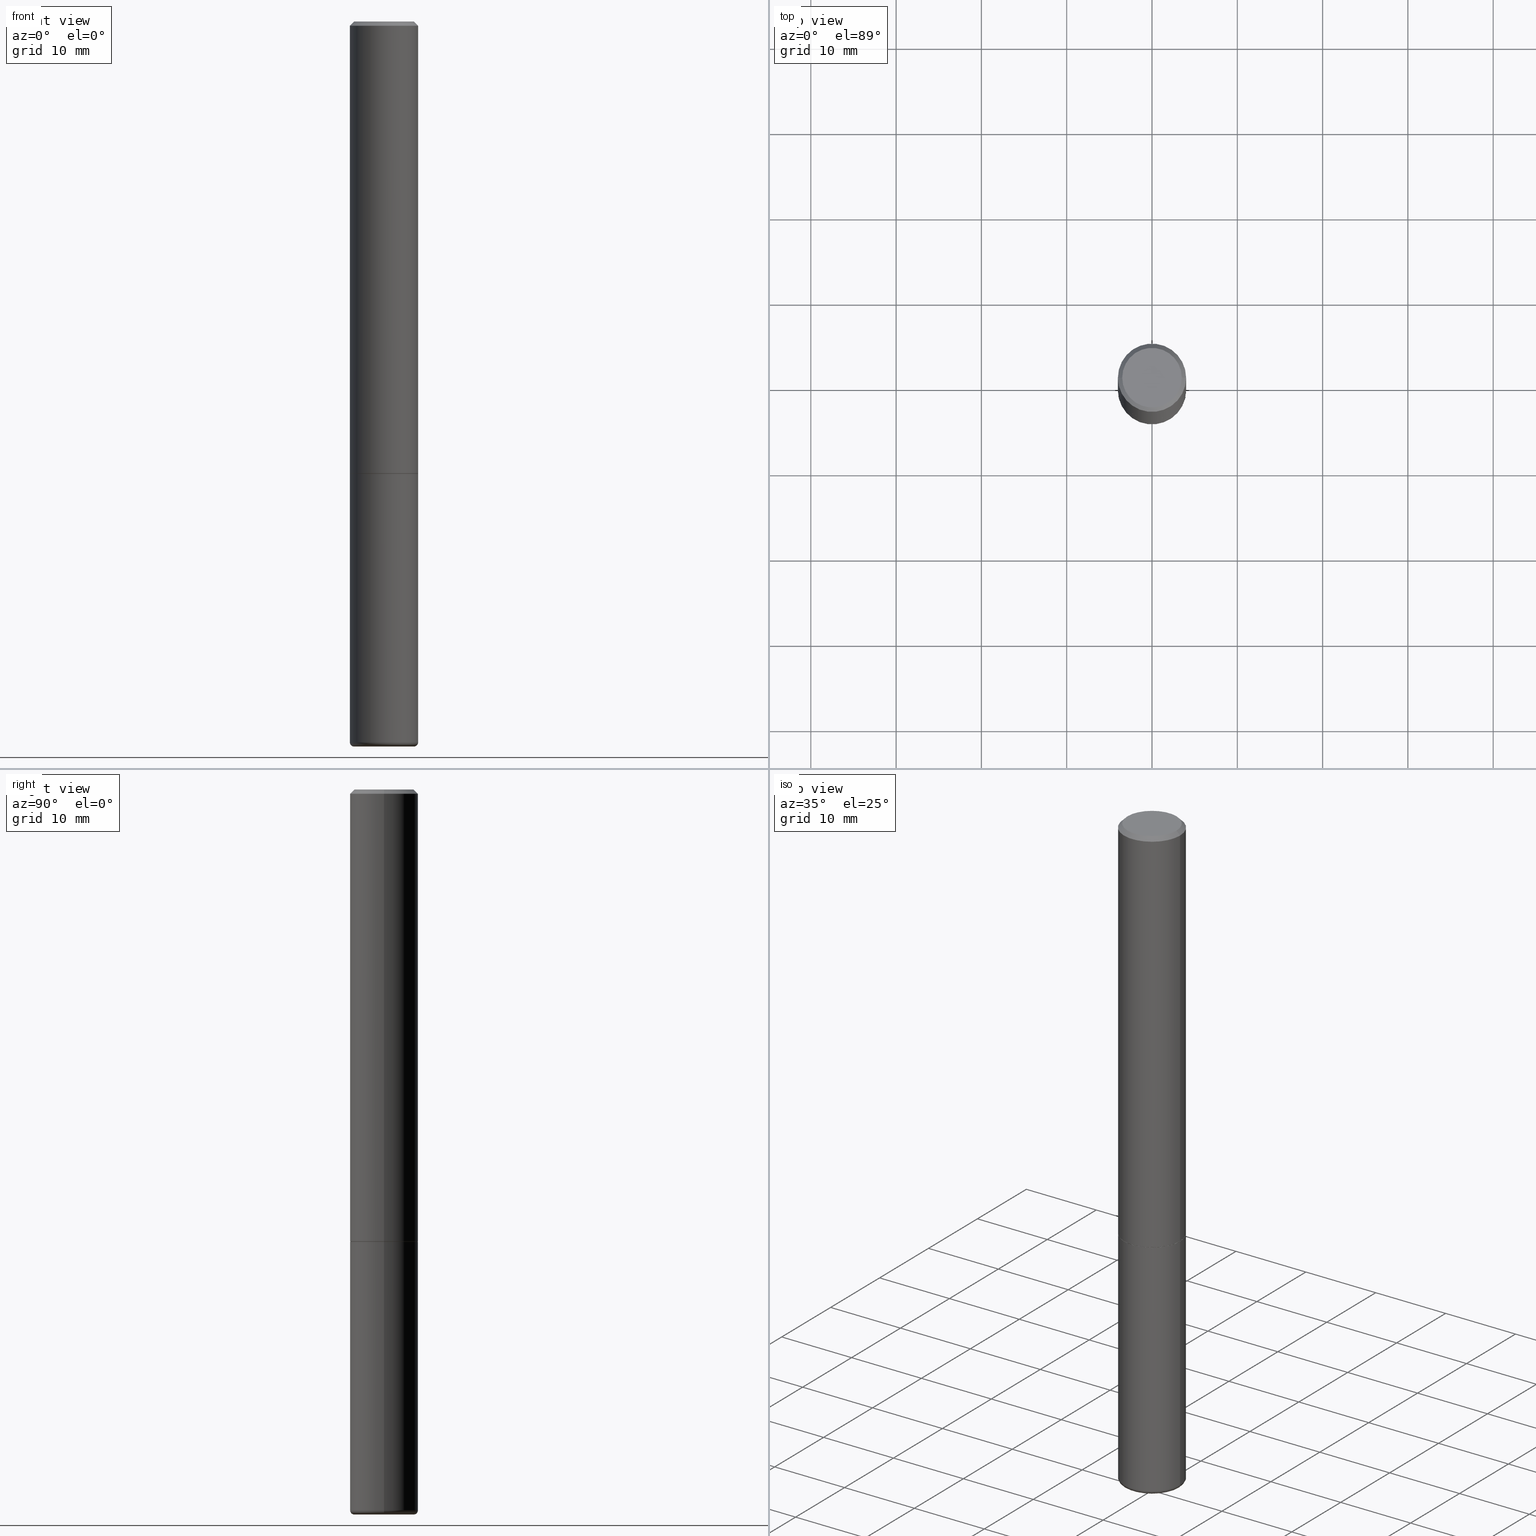
[diagram: canonical four-view strip — front | top / right | iso, engineering-drawing reading convention]
A machine part, canonical four-view strip (front | top / right | iso — engineering-drawing reading convention). The complete STEP part file that produces these views, byte-faithful:
ISO-10303-21;
HEADER;
FILE_DESCRIPTION (( 'STEP AP203' ),
    '1' );
FILE_NAME ('74385.STEP',
    '2024-03-06T15:10:16',
    ( '' ),
    ( '' ),
    'SwSTEP 2.0',
    'SolidWorks 2023',
    '' );
FILE_SCHEMA (( 'CONFIG_CONTROL_DESIGN' ));
ENDSEC;

DATA;
#1 = APPLICATION_CONTEXT ( 'configuration controlled 3d designs of mechanical parts and assemblies' ) ;
#2 = CARTESIAN_POINT ( 'NONE',  ( 4.890937612370281041E-31, -6.982962677686302702E-17, -0.02000000000000003511 ) ) ;
#3 = ORIENTED_EDGE ( 'NONE', *, *, #412, .F. ) ;
#4 = PERSON_AND_ORGANIZATION ( #186, #296 ) ;
#5 = CIRCLE ( 'NONE', #33, 0.1575000000000001954 ) ;
#6 = LOCAL_TIME ( 10, 10, 16.00000000000000000, #405 ) ;
#7 = ORIENTED_EDGE ( 'NONE', *, *, #338, .F. ) ;
#8 = CARTESIAN_POINT ( 'NONE',  ( -0.1378000000000000058, -1.063633222818595933E-14, -3.326799999999999979 ) ) ;
#9 = CIRCLE ( 'NONE', #125, 0.1575000000000000011 ) ;
#10 = APPLICATION_PROTOCOL_DEFINITION ( 'international standard', 'config_control_design', 1994, #1 ) ;
#11 = LINE ( 'NONE', #106, #315 ) ;
#12 = COORDINATED_UNIVERSAL_TIME_OFFSET ( 5, 0, .BEHIND. ) ;
#13 = EDGE_LOOP ( 'NONE', ( #7, #86, #345, #275 ) ) ;
#14 = CARTESIAN_POINT ( 'NONE',  ( 0.000000000000000000, 0.000000000000000000, 0.000000000000000000 ) ) ;
#15 = CARTESIAN_POINT ( 'NONE',  ( 5.102959757866523939E-29, -7.285674109763990928E-15, -2.086699999999999999 ) ) ;
#16 = UNCERTAINTY_MEASURE_WITH_UNIT (LENGTH_MEASURE( 1.000000000000000082E-05 ), #415, 'distance_accuracy_value', 'NONE');
#17 = PERSON_AND_ORGANIZATION ( #186, #296 ) ;
#18 = CYLINDRICAL_SURFACE ( 'NONE', #297, 0.1575000000000000289 ) ;
#19 = CARTESIAN_POINT ( 'NONE',  ( 8.135585624416713045E-29, -1.161546011806337842E-14, -3.326799999999999979 ) ) ;
#20 = AXIS2_PLACEMENT_3D ( 'NONE', #47, #159, #51 ) ;
#21 = ORIENTED_EDGE ( 'NONE', *, *, #88, .T. ) ;
#22 = ORIENTED_EDGE ( 'NONE', *, *, #220, .F. ) ;
#23 = CIRCLE ( 'NONE', #366, 0.1565000000000000002 ) ;
#24 = CC_DESIGN_PERSON_AND_ORGANIZATION_ASSIGNMENT ( #199, #102, ( #335 ) ) ;
#25 = EDGE_LOOP ( 'NONE', ( #142, #166, #208, #407 ) ) ;
#26 = CONICAL_SURFACE ( 'NONE', #281, 0.1575000000000000289, 0.7853981633974481680 ) ;
#27 = AXIS2_PLACEMENT_3D ( 'NONE', #39, #352, #31 ) ;
#28 = ORIENTED_EDGE ( 'NONE', *, *, #112, .T. ) ;
#29 = ADVANCED_FACE ( 'NONE', ( #205 ), #262, .F. ) ;
#30 = AXIS2_PLACEMENT_3D ( 'NONE', #253, #151, #87 ) ;
#31 = DIRECTION ( 'NONE',  ( 1.000000000000000000, -6.982962677686266711E-15, 4.883557194083113462E-29 ) ) ;
#32 = ORIENTED_EDGE ( 'NONE', *, *, #94, .T. ) ;
#33 = AXIS2_PLACEMENT_3D ( 'NONE', #149, #187, #390 ) ;
#34 = DIRECTION ( 'NONE',  ( 0.7071067811865957564, -2.468850131082761932E-15, 0.7071067811864992780 ) ) ;
#35 = EDGE_LOOP ( 'NONE', ( #98, #239, #113, #37 ) ) ;
#36 = APPROVAL ( #152, 'UNSPECIFIED' ) ;
#37 = ORIENTED_EDGE ( 'NONE', *, *, #363, .F. ) ;
#38 = PERSON_AND_ORGANIZATION ( #186, #296 ) ;
#39 = CARTESIAN_POINT ( 'NONE',  ( 8.135585624416713045E-29, -1.161546011806337842E-14, -3.326799999999999979 ) ) ;
#40 = ORIENTED_EDGE ( 'NONE', *, *, #372, .F. ) ;
#41 = ADVANCED_FACE ( 'NONE', ( #369 ), #133, .T. ) ;
#42 = ORIENTED_EDGE ( 'NONE', *, *, #220, .T. ) ;
#43 = CARTESIAN_POINT ( 'NONE',  ( 5.102959757866523939E-29, -7.285674109763990928E-15, -2.086699999999999999 ) ) ;
#44 = CC_DESIGN_PERSON_AND_ORGANIZATION_ASSIGNMENT ( #75, #361, ( #285 ) ) ;
#45 = COORDINATED_UNIVERSAL_TIME_OFFSET ( 5, 0, .BEHIND. ) ;
#46 = CIRCLE ( 'NONE', #195, 0.01969999999999989468 ) ;
#47 = CARTESIAN_POINT ( 'NONE',  ( 8.183761359898559783E-29, -1.168424230043858645E-14, -3.346499999999999808 ) ) ;
#48 = AXIS2_PLACEMENT_3D ( 'NONE', #301, #330, #400 ) ;
#49 = CARTESIAN_POINT ( 'NONE',  ( 5.102959757866523939E-29, -7.285674109763990928E-15, -2.086699999999999999 ) ) ;
#50 = CALENDAR_DATE ( 2024, 6, 3 ) ;
#51 = DIRECTION ( 'NONE',  ( 1.000000000000000000, -6.982962677686265922E-15, 0.000000000000000000 ) ) ;
#52 = VERTEX_POINT ( 'NONE', #141 ) ;
#53 = LINE ( 'NONE', #167, #376 ) ;
#54 = VERTEX_POINT ( 'NONE', #265 ) ;
#55 = DIRECTION ( 'NONE',  ( -1.000000000000000000, 6.982962677686265922E-15, -4.876176775795935793E-29 ) ) ;
#56 = DIRECTION ( 'NONE',  ( -2.445468806185136597E-29, 3.491481338843145583E-15, 1.000000000000000000 ) ) ;
#57 = EDGE_CURVE ( 'NONE', #188, #313, #118, .T. ) ;
#58 = ORIENTED_EDGE ( 'NONE', *, *, #175, .T. ) ;
#59 = LOCAL_TIME ( 10, 10, 16.00000000000000000, #12 ) ;
#60 = AXIS2_PLACEMENT_3D ( 'NONE', #8, #305, #358 ) ;
#61 = ORIENTED_EDGE ( 'NONE', *, *, #178, .F. ) ;
#62 = LOCAL_TIME ( 10, 10, 16.00000000000000000, #194 ) ;
#63 = DIRECTION ( 'NONE',  ( -2.438088387897960049E-29, 3.491481338843145188E-15, 1.000000000000000000 ) ) ;
#64 = AXIS2_PLACEMENT_3D ( 'NONE', #19, #139, #381 ) ;
#65 = DIRECTION ( 'NONE',  ( -2.445468806185136597E-29, 3.491481338843145583E-15, 1.000000000000000000 ) ) ;
#66 = ADVANCED_FACE ( 'NONE', ( #170 ), #404, .T. ) ;
#67 = FACE_OUTER_BOUND ( 'NONE', #377, .T. ) ;
#68 = DIRECTION ( 'NONE',  ( -0.7071067811865473507, 2.468850131082255483E-15, -0.7071067811865475727 ) ) ;
#69 = SECURITY_CLASSIFICATION_LEVEL ( 'unclassified' ) ;
#70 = EDGE_CURVE ( 'NONE', #289, #188, #46, .T. ) ;
#71 = EDGE_CURVE ( 'NONE', #171, #246, #23, .T. ) ;
#72 = CARTESIAN_POINT ( 'NONE',  ( 0.1565000000000000002, -8.378507768821891605E-15, -2.086699999999999999 ) ) ;
#73 = CARTESIAN_POINT ( 'NONE',  ( -0.1575000000000001954, -2.556901318778844062E-15, -2.085699999999999665 ) ) ;
#74 = DIRECTION ( 'NONE',  ( 2.445468806185136597E-29, -3.491481338843145583E-15, -1.000000000000000000 ) ) ;
#75 = PERSON_AND_ORGANIZATION ( #186, #296 ) ;
#76 = DIRECTION ( 'NONE',  ( 1.000000000000000000, -6.982962677686268288E-15, 0.000000000000000000 ) ) ;
#77 = DIRECTION ( 'NONE',  ( -2.445468806185136597E-29, 3.491481338843145583E-15, 1.000000000000000000 ) ) ;
#78 = VECTOR ( 'NONE', #34, 39.37007874015748143 ) ;
#79 = DIRECTION ( 'NONE',  ( 1.000000000000000000, 0.000000000000000000, 0.000000000000000000 ) ) ;
#80 = CARTESIAN_POINT ( 'NONE',  ( 5.102959757866523939E-29, -7.285674109763990928E-15, -2.086699999999999999 ) ) ;
#81 = ORIENTED_EDGE ( 'NONE', *, *, #372, .T. ) ;
#82 = VECTOR ( 'NONE', #116, 39.37007874015748143 ) ;
#83 = ORIENTED_EDGE ( 'NONE', *, *, #398, .T. ) ;
#84 = ADVANCED_FACE ( 'NONE', ( #334 ), #18, .T. ) ;
#85 = EDGE_LOOP ( 'NONE', ( #198, #382 ) ) ;
#86 = ORIENTED_EDGE ( 'NONE', *, *, #412, .T. ) ;
#87 = DIRECTION ( 'NONE',  ( 1.000000000000000000, -6.982962677686267499E-15, 0.000000000000000000 ) ) ;
#88 = EDGE_CURVE ( 'NONE', #173, #244, #145, .T. ) ;
#89 = FACE_OUTER_BOUND ( 'NONE', #25, .T. ) ;
#90 = ADVANCED_FACE ( 'NONE', ( #270 ), #158, .T. ) ;
#91 = DIRECTION ( 'NONE',  ( -2.445468806185136597E-29, 3.491481338843145583E-15, 1.000000000000000000 ) ) ;
#92 = TOROIDAL_SURFACE ( 'NONE', #27, 0.1378000000000000058, 0.01969999999999991203 ) ;
#93 = DIRECTION ( 'NONE',  ( 1.000000000000000000, -6.982962677686265922E-15, 0.000000000000000000 ) ) ;
#94 = EDGE_CURVE ( 'NONE', #313, #188, #337, .T. ) ;
#95 = AXIS2_PLACEMENT_3D ( 'NONE', #15, #340, #55 ) ;
#96 = CIRCLE ( 'NONE', #214, 0.1575000000000000289 ) ;
#97 = DIRECTION ( 'NONE',  ( -2.445468806185136597E-29, 3.491481338843145583E-15, 1.000000000000000000 ) ) ;
#98 = ORIENTED_EDGE ( 'NONE', *, *, #130, .T. ) ;
#99 = DIRECTION ( 'NONE',  ( -2.445468806185136597E-29, 3.491481338843145583E-15, 1.000000000000000000 ) ) ;
#100 = PERSON_AND_ORGANIZATION_ROLE ( 'classification_officer' ) ;
#101 = CARTESIAN_POINT ( 'NONE',  ( 4.890937612370281041E-31, -6.982962677686302702E-17, -0.02000000000000003511 ) ) ;
#102 = PERSON_AND_ORGANIZATION_ROLE ( 'design_owner' ) ;
#103 = DIRECTION ( 'NONE',  ( -2.445468806185136597E-29, 3.491481338843145583E-15, 1.000000000000000000 ) ) ;
#104 = PERSON_AND_ORGANIZATION ( #186, #296 ) ;
#105 = DIRECTION ( 'NONE',  ( 1.000000000000000000, -6.982962677686273810E-15, 0.000000000000000000 ) ) ;
#106 = CARTESIAN_POINT ( 'NONE',  ( 0.1575000000000000289, -1.099816621735587283E-15, 7.679978421878599434E-30 ) ) ;
#107 = CC_DESIGN_DATE_AND_TIME_ASSIGNMENT ( #225, #322, ( #385 ) ) ;
#108 = CARTESIAN_POINT ( 'NONE',  ( 0.1378000000000000058, -1.257771237504854589E-14, -3.326799999999999979 ) ) ;
#109 = PERSON_AND_ORGANIZATION ( #186, #296 ) ;
#110 = DIRECTION ( 'NONE',  ( 1.000000000000000000, -6.982962677686266711E-15, 0.000000000000000000 ) ) ;
#111 = DIRECTION ( 'NONE',  ( -1.000000000000000000, 6.982962677686265922E-15, -4.876176775795935793E-29 ) ) ;
#112 = EDGE_CURVE ( 'NONE', #271, #172, #219, .T. ) ;
#113 = ORIENTED_EDGE ( 'NONE', *, *, #348, .F. ) ;
#114 = ORIENTED_EDGE ( 'NONE', *, *, #112, .F. ) ;
#115 = AXIS2_PLACEMENT_3D ( 'NONE', #268, #406, #371 ) ;
#116 = DIRECTION ( 'NONE',  ( -2.445468806185136877E-29, 3.491481338843145188E-15, 1.000000000000000000 ) ) ;
#117 = DIRECTION ( 'NONE',  ( -2.445468806185136877E-29, 3.491481338843145188E-15, 1.000000000000000000 ) ) ;
#118 = CIRCLE ( 'NONE', #124, 0.1575000000000000289 ) ;
#119 = CYLINDRICAL_SURFACE ( 'NONE', #370, 0.1575000000000000289 ) ;
#120 = FACE_OUTER_BOUND ( 'NONE', #273, .T. ) ;
#121 = DIRECTION ( 'NONE',  ( 1.000000000000000000, -6.982962677686265922E-15, 4.876176775795935793E-29 ) ) ;
#122 = DIRECTION ( 'NONE',  ( -1.000000000000000000, 6.982962677686267499E-15, 0.000000000000000000 ) ) ;
#123 = ORIENTED_EDGE ( 'NONE', *, *, #94, .F. ) ;
#124 = AXIS2_PLACEMENT_3D ( 'NONE', #401, #240, #105 ) ;
#125 = AXIS2_PLACEMENT_3D ( 'NONE', #43, #155, #76 ) ;
#126 = FACE_OUTER_BOUND ( 'NONE', #391, .T. ) ;
#127 = PRODUCT_DEFINITION_SHAPE ( 'NONE', 'NONE',  #285 ) ;
#128 = DATE_AND_TIME ( #304, #6 ) ;
#129 = DIRECTION ( 'NONE',  ( -2.445468806185136597E-29, 3.491481338843145583E-15, 1.000000000000000000 ) ) ;
#130 = EDGE_CURVE ( 'NONE', #246, #171, #202, .T. ) ;
#131 = ADVANCED_FACE ( 'NONE', ( #290 ), #346, .F. ) ;
#132 = APPROVAL_STATUS ( 'not_yet_approved' ) ;
#133 = PLANE ( 'NONE',  #255 ) ;
#134 = DATE_TIME_ROLE ( 'creation_date' ) ;
#135 = DIRECTION ( 'NONE',  ( 2.438088387897960049E-29, -3.491481338843145188E-15, -1.000000000000000000 ) ) ;
#136 = MANIFOLD_SOLID_BREP ( 'Body-Move/Copy2[1]', #213 ) ;
#137 = MANIFOLD_SOLID_BREP ( 'Body-Move/Copy2[2]', #157 ) ;
#138 = ADVANCED_FACE ( 'NONE', ( #251 ), #222, .F. ) ;
#139 = DIRECTION ( 'NONE',  ( -2.445468806185136597E-29, 3.491481338843145583E-15, 1.000000000000000000 ) ) ;
#140 = VERTEX_POINT ( 'NONE', #216 ) ;
#141 = CARTESIAN_POINT ( 'NONE',  ( 0.1575000000000000289, -1.150358061425879472E-15, -0.02000000000000003511 ) ) ;
#142 = ORIENTED_EDGE ( 'NONE', *, *, #209, .F. ) ;
#143 = EDGE_CURVE ( 'NONE', #207, #52, #316, .T. ) ;
#144 = ORIENTED_EDGE ( 'NONE', *, *, #143, .T. ) ;
#145 = CIRCLE ( 'NONE', #181, 0.1575000000000000011 ) ;
#146 =( NAMED_UNIT ( * ) PLANE_ANGLE_UNIT ( ) SI_UNIT ( $, .RADIAN. ) );
#147 = EDGE_CURVE ( 'NONE', #52, #172, #411, .T. ) ;
#148 = DIRECTION ( 'NONE',  ( -2.445468806185136597E-29, 3.491481338843145583E-15, 1.000000000000000000 ) ) ;
#149 = CARTESIAN_POINT ( 'NONE',  ( 5.100514289060338336E-29, -7.282182628425147921E-15, -2.085699999999999665 ) ) ;
#150 = CARTESIAN_POINT ( 'NONE',  ( 5.100514289060338336E-29, -7.282182628425147921E-15, -2.085699999999999665 ) ) ;
#151 = DIRECTION ( 'NONE',  ( -2.445468806185136597E-29, 3.491481338843145583E-15, 1.000000000000000000 ) ) ;
#152 = APPROVAL_STATUS ( 'not_yet_approved' ) ;
#153 = FACE_OUTER_BOUND ( 'NONE', #413, .T. ) ;
#154 = APPROVAL_PERSON_ORGANIZATION ( #17, #374, #267 ) ;
#155 = DIRECTION ( 'NONE',  ( -2.445468806185136597E-29, 3.491481338843145583E-15, 1.000000000000000000 ) ) ;
#156 = CIRCLE ( 'NONE', #60, 0.01969999999999989468 ) ;
#157 = CLOSED_SHELL ( 'NONE', ( #90, #66, #241, #308, #169, #332, #131, #138 ) ) ;
#158 = CONICAL_SURFACE ( 'NONE', #115, 0.1565000000000000002, 0.7853981633975165577 ) ;
#159 = DIRECTION ( 'NONE',  ( -2.445468806185136597E-29, 3.491481338843145583E-15, 1.000000000000000000 ) ) ;
#160 = DIRECTION ( 'NONE',  ( 1.000000000000000000, -6.982962677686268288E-15, 0.000000000000000000 ) ) ;
#161 = EDGE_CURVE ( 'NONE', #172, #52, #96, .T. ) ;
#162 = AXIS2_PLACEMENT_3D ( 'NONE', #2, #250, #122 ) ;
#163 = TOROIDAL_SURFACE ( 'NONE', #341, 0.1378000000000000058, 0.01969999999999991203 ) ;
#164 = CARTESIAN_POINT ( 'NONE',  ( -0.1575000000000000289, 1.029986994958724182E-15, -0.02000000000000003511 ) ) ;
#165 = CALENDAR_DATE ( 2024, 6, 3 ) ;
#166 = ORIENTED_EDGE ( 'NONE', *, *, #71, .T. ) ;
#167 = CARTESIAN_POINT ( 'NONE',  ( -0.1565000000000000002, -6.173674728299434333E-15, -2.086699999999999999 ) ) ;
#168 = CARTESIAN_POINT ( 'NONE',  ( 0.000000000000000000, 0.000000000000000000, 0.000000000000000000 ) ) ;
#169 = ADVANCED_FACE ( 'NONE', ( #230 ), #396, .T. ) ;
#170 = FACE_OUTER_BOUND ( 'NONE', #201, .T. ) ;
#171 = VERTEX_POINT ( 'NONE', #368 ) ;
#172 = VERTEX_POINT ( 'NONE', #164 ) ;
#173 = VERTEX_POINT ( 'NONE', #325 ) ;
#174 = ORIENTED_EDGE ( 'NONE', *, *, #226, .F. ) ;
#175 = EDGE_CURVE ( 'NONE', #188, #173, #11, .T. ) ;
#176 = EDGE_LOOP ( 'NONE', ( #185, #177 ) ) ;
#177 = ORIENTED_EDGE ( 'NONE', *, *, #71, .F. ) ;
#178 = EDGE_CURVE ( 'NONE', #244, #173, #9, .T. ) ;
#179 = APPROVAL_PERSON_ORGANIZATION ( #38, #36, #291 ) ;
#180 = DIRECTION ( 'NONE',  ( -1.000000000000000000, 6.982962677686265922E-15, -4.876176775795935793E-29 ) ) ;
#181 = AXIS2_PLACEMENT_3D ( 'NONE', #49, #365, #160 ) ;
#182 = DIRECTION ( 'NONE',  ( 2.438088387897960049E-29, -3.491481338843145188E-15, -1.000000000000000000 ) ) ;
#183 = ADVANCED_BREP_SHAPE_REPRESENTATION ( '74385', ( #136, #137, #294 ), #347 ) ;
#184 = DIRECTION ( 'NONE',  ( -2.445468806185136597E-29, 3.491481338843145583E-15, 1.000000000000000000 ) ) ;
#185 = ORIENTED_EDGE ( 'NONE', *, *, #130, .F. ) ;
#186 = PERSON ( 'UNSPECIFIED', 'UNSPECIFIED', 'UNSPECIFIED', ('UNSPECIFIED'), ('UNSPECIFIED'), ('UNSPECIFIED') ) ;
#187 = DIRECTION ( 'NONE',  ( -2.445468806185136597E-29, 3.491481338843145583E-15, 1.000000000000000000 ) ) ;
#188 = VERTEX_POINT ( 'NONE', #333 ) ;
#189 = APPROVAL_ROLE ( '' ) ;
#190 = CARTESIAN_POINT ( 'NONE',  ( -0.1575000000000000289, 1.029986994958724182E-15, -0.02000000000000003511 ) ) ;
#191 = APPROVAL_DATE_TIME ( #389, #36 ) ;
#192 = LOCAL_TIME ( 10, 10, 16.00000000000000000, #45 ) ;
#193 = CARTESIAN_POINT ( 'NONE',  ( 8.135585624416713045E-29, -1.161546011806337842E-14, -3.326799999999999979 ) ) ;
#194 = COORDINATED_UNIVERSAL_TIME_OFFSET ( 5, 0, .BEHIND. ) ;
#195 = AXIS2_PLACEMENT_3D ( 'NONE', #108, #234, #110 ) ;
#196 = CARTESIAN_POINT ( 'NONE',  ( -4.906101647375532782E-45, 7.004612900788102525E-31, 2.006200870347193393E-16 ) ) ;
#197 = PERSON_AND_ORGANIZATION_ROLE ( 'creator' ) ;
#198 = ORIENTED_EDGE ( 'NONE', *, *, #226, .T. ) ;
#199 = PERSON_AND_ORGANIZATION ( #186, #296 ) ;
#200 = DIRECTION ( 'NONE',  ( 1.000000000000000000, -6.982962677686267499E-15, 0.000000000000000000 ) ) ;
#201 = EDGE_LOOP ( 'NONE', ( #408, #28, #320, #203 ) ) ;
#202 = CIRCLE ( 'NONE', #30, 0.1565000000000000002 ) ;
#203 = ORIENTED_EDGE ( 'NONE', *, *, #143, .F. ) ;
#204 = ORIENTED_EDGE ( 'NONE', *, *, #161, .T. ) ;
#205 = FACE_OUTER_BOUND ( 'NONE', #242, .T. ) ;
#206 = CC_DESIGN_PERSON_AND_ORGANIZATION_ASSIGNMENT ( #4, #254, ( #237 ) ) ;
#207 = VERTEX_POINT ( 'NONE', #224 ) ;
#208 = ORIENTED_EDGE ( 'NONE', *, *, #363, .T. ) ;
#209 = EDGE_CURVE ( 'NONE', #171, #271, #53, .T. ) ;
#210 =( NAMED_UNIT ( * ) SI_UNIT ( $, .STERADIAN. ) SOLID_ANGLE_UNIT ( ) );
#211 = CC_DESIGN_SECURITY_CLASSIFICATION ( #385, ( #237 ) ) ;
#212 = CARTESIAN_POINT ( 'NONE',  ( 5.102959757866523939E-29, -7.285674109763990928E-15, -2.086699999999999999 ) ) ;
#213 = CLOSED_SHELL ( 'NONE', ( #318, #339, #29, #84, #256, #41 ) ) ;
#214 = AXIS2_PLACEMENT_3D ( 'NONE', #362, #99, #259 ) ;
#215 = CARTESIAN_POINT ( 'NONE',  ( 0.1565000000000000002, -8.378507768821891605E-15, -2.086699999999999999 ) ) ;
#216 = CARTESIAN_POINT ( 'NONE',  ( -0.1374999999999997891, 9.950721815702925329E-16, 2.006200870347125108E-16 ) ) ;
#217 = CIRCLE ( 'NONE', #269, 0.1378000000000000058 ) ;
#218 = CARTESIAN_POINT ( 'NONE',  ( -0.1575000000000000289, 1.119104808822157998E-15, -7.747322767151478386E-30 ) ) ;
#219 = LINE ( 'NONE', #353, #395 ) ;
#220 = EDGE_CURVE ( 'NONE', #342, #313, #156, .T. ) ;
#221 = LINE ( 'NONE', #218, #373 ) ;
#222 = PLANE ( 'NONE',  #349 ) ;
#223 = LINE ( 'NONE', #190, #418 ) ;
#224 = CARTESIAN_POINT ( 'NONE',  ( 0.1575000000000001954, -8.381999250160736190E-15, -2.085699999999999665 ) ) ;
#225 = DATE_AND_TIME ( #165, #59 ) ;
#226 = EDGE_CURVE ( 'NONE', #140, #54, #243, .T. ) ;
#227 = PRODUCT_RELATED_PRODUCT_CATEGORY ( 'detail', '', ( #335 ) ) ;
#228 = DIRECTION ( 'NONE',  ( -1.000000000000000000, 6.982962677686267499E-15, 0.000000000000000000 ) ) ;
#229 = APPROVAL_DATE_TIME ( #128, #374 ) ;
#230 = FACE_OUTER_BOUND ( 'NONE', #336, .T. ) ;
#231 = EDGE_LOOP ( 'NONE', ( #414, #40 ) ) ;
#232 = CARTESIAN_POINT ( 'NONE',  ( 0.000000000000000000, 0.000000000000000000, 0.000000000000000000 ) ) ;
#233 = DIRECTION ( 'NONE',  ( -2.445468806185136877E-29, 3.491481338843145188E-15, 1.000000000000000000 ) ) ;
#234 = DIRECTION ( 'NONE',  ( -6.982962677686266711E-15, -1.000000000000000000, 3.491481338843145583E-15 ) ) ;
#235 = APPROVAL_STATUS ( 'not_yet_approved' ) ;
#236 = APPLICATION_CONTEXT ( 'configuration controlled 3d designs of mechanical parts and assemblies' ) ;
#237 = PRODUCT_DEFINITION_FORMATION_WITH_SPECIFIED_SOURCE ( 'ANY', '', #335, .NOT_KNOWN. ) ;
#238 = CARTESIAN_POINT ( 'NONE',  ( 0.000000000000000000, 0.000000000000000000, 0.000000000000000000 ) ) ;
#239 = ORIENTED_EDGE ( 'NONE', *, *, #209, .T. ) ;
#240 = DIRECTION ( 'NONE',  ( -2.445468806185136597E-29, 3.491481338843145583E-15, 1.000000000000000000 ) ) ;
#241 = ADVANCED_FACE ( 'NONE', ( #261 ), #26, .T. ) ;
#242 = EDGE_LOOP ( 'NONE', ( #21, #317 ) ) ;
#243 = CIRCLE ( 'NONE', #324, 0.1374999999999997891 ) ;
#244 = VERTEX_POINT ( 'NONE', #359 ) ;
#245 = APPROVAL_PERSON_ORGANIZATION ( #109, #247, #189 ) ;
#246 = VERTEX_POINT ( 'NONE', #72 ) ;
#247 = APPROVAL ( #235, 'UNSPECIFIED' ) ;
#248 = DIRECTION ( 'NONE',  ( 1.000000000000000000, -6.982962677686267499E-15, 4.874794762600771100E-29 ) ) ;
#249 = AXIS2_PLACEMENT_3D ( 'NONE', #150, #97, #388 ) ;
#250 = DIRECTION ( 'NONE',  ( 2.445468806185136597E-29, -3.491481338843145583E-15, -1.000000000000000000 ) ) ;
#251 = FACE_OUTER_BOUND ( 'NONE', #85, .T. ) ;
#252 = CARTESIAN_POINT ( 'NONE',  ( 0.000000000000000000, 0.000000000000000000, 0.000000000000000000 ) ) ;
#253 = CARTESIAN_POINT ( 'NONE',  ( 5.102959757866523939E-29, -7.285674109763990928E-15, -2.086699999999999999 ) ) ;
#254 = PERSON_AND_ORGANIZATION_ROLE ( 'design_supplier' ) ;
#255 = AXIS2_PLACEMENT_3D ( 'NONE', #307, #135, #111 ) ;
#256 = ADVANCED_FACE ( 'NONE', ( #126 ), #163, .T. ) ;
#257 = AXIS2_PLACEMENT_3D ( 'NONE', #212, #63, #121 ) ;
#258 = ORIENTED_EDGE ( 'NONE', *, *, #88, .F. ) ;
#259 = DIRECTION ( 'NONE',  ( 1.000000000000000000, -6.982962677686267499E-15, 0.000000000000000000 ) ) ;
#260 = CALENDAR_DATE ( 2024, 6, 3 ) ;
#261 = FACE_OUTER_BOUND ( 'NONE', #13, .T. ) ;
#262 = PLANE ( 'NONE',  #95 ) ;
#263 = COORDINATED_UNIVERSAL_TIME_OFFSET ( 5, 0, .BEHIND. ) ;
#264 = DIRECTION ( 'NONE',  ( -2.445468806185136597E-29, 3.491481338843145583E-15, 1.000000000000000000 ) ) ;
#265 = CARTESIAN_POINT ( 'NONE',  ( 0.1374999999999997891, -1.046838268059731505E-15, 2.006200870347263405E-16 ) ) ;
#266 = DESIGN_CONTEXT ( 'detailed design', #1, 'design' ) ;
#267 = APPROVAL_ROLE ( '' ) ;
#268 = CARTESIAN_POINT ( 'NONE',  ( 5.102959757866523939E-29, -7.285674109763990928E-15, -2.086699999999999999 ) ) ;
#269 = AXIS2_PLACEMENT_3D ( 'NONE', #387, #91, #93 ) ;
#270 = FACE_OUTER_BOUND ( 'NONE', #35, .T. ) ;
#271 = VERTEX_POINT ( 'NONE', #73 ) ;
#272 = CC_DESIGN_APPROVAL ( #374, ( #285 ) ) ;
#273 = EDGE_LOOP ( 'NONE', ( #3, #174, #83, #204 ) ) ;
#274 = CC_DESIGN_DATE_AND_TIME_ASSIGNMENT ( #402, #134, ( #285 ) ) ;
#275 = ORIENTED_EDGE ( 'NONE', *, *, #398, .F. ) ;
#276 = VECTOR ( 'NONE', #293, 39.37007874015748854 ) ;
#277 = CIRCLE ( 'NONE', #249, 0.1575000000000001954 ) ;
#278 = ORIENTED_EDGE ( 'NONE', *, *, #70, .F. ) ;
#279 = ORIENTED_EDGE ( 'NONE', *, *, #175, .F. ) ;
#280 = AXIS2_PLACEMENT_3D ( 'NONE', #14, #264, #403 ) ;
#281 = AXIS2_PLACEMENT_3D ( 'NONE', #101, #74, #228 ) ;
#282 = CARTESIAN_POINT ( 'NONE',  ( 0.1575000000000000844, -1.099816621735587677E-15, 7.679978421878603638E-30 ) ) ;
#283 = CARTESIAN_POINT ( 'NONE',  ( 0.1575000000000000289, -1.150358061425879472E-15, -0.02000000000000003511 ) ) ;
#284 = CARTESIAN_POINT ( 'NONE',  ( 9.601573681818600950E-16, 0.1374999999999997891, -3.797686405735721404E-16 ) ) ;
#285 = PRODUCT_DEFINITION ( 'UNKNOWN', '', #237, #266 ) ;
#286 = EDGE_CURVE ( 'NONE', #289, #342, #379, .T. ) ;
#287 = LINE ( 'NONE', #215, #78 ) ;
#288 = CARTESIAN_POINT ( 'NONE',  ( 5.102959757866523939E-29, -7.285674109763990928E-15, -2.086699999999999999 ) ) ;
#289 = VERTEX_POINT ( 'NONE', #298 ) ;
#290 = FACE_OUTER_BOUND ( 'NONE', #176, .T. ) ;
#291 = APPROVAL_ROLE ( '' ) ;
#292 = CONICAL_SURFACE ( 'NONE', #309, 0.1565000000000000002, 0.7853981633975165577 ) ;
#293 = DIRECTION ( 'NONE',  ( 0.7071067811865473507, -7.319954787623254468E-15, -0.7071067811865475727 ) ) ;
#294 = AXIS2_PLACEMENT_3D ( 'NONE', #232, #399, #79 ) ;
#295 = DIRECTION ( 'NONE',  ( -0.7071067811865957564, 7.493145998870527710E-15, 0.7071067811864992780 ) ) ;
#296 = ORGANIZATION ( 'UNSPECIFIED', 'UNSPECIFIED', '' ) ;
#297 = AXIS2_PLACEMENT_3D ( 'NONE', #168, #409, #306 ) ;
#298 = CARTESIAN_POINT ( 'NONE',  ( 0.1378000000000000058, -1.264649455742375392E-14, -3.346499999999999808 ) ) ;
#299 = ORIENTED_EDGE ( 'NONE', *, *, #57, .T. ) ;
#300 = APPLICATION_PROTOCOL_DEFINITION ( 'international standard', 'config_control_design', 1994, #236 ) ;
#301 = CARTESIAN_POINT ( 'NONE',  ( 4.890937612370281041E-31, -6.982962677686302702E-17, -0.02000000000000003511 ) ) ;
#302 = ORIENTED_EDGE ( 'NONE', *, *, #383, .T. ) ;
#303 = CC_DESIGN_PERSON_AND_ORGANIZATION_ASSIGNMENT ( #104, #197, ( #237 ) ) ;
#304 = CALENDAR_DATE ( 2024, 6, 3 ) ;
#305 = DIRECTION ( 'NONE',  ( 7.105427357601001859E-15, 1.000000000000000000, -3.491481338843145583E-15 ) ) ;
#306 = DIRECTION ( 'NONE',  ( 1.000000000000000000, -6.982962677686267499E-15, 4.876176775795935232E-29 ) ) ;
#307 = CARTESIAN_POINT ( 'NONE',  ( 8.183761359898559783E-29, -1.168424230043858645E-14, -3.346499999999999808 ) ) ;
#308 = ADVANCED_FACE ( 'NONE', ( #120 ), #350, .T. ) ;
#309 = AXIS2_PLACEMENT_3D ( 'NONE', #288, #65, #319 ) ;
#310 = CIRCLE ( 'NONE', #314, 0.1374999999999997891 ) ;
#311 = DIRECTION ( 'NONE',  ( 1.000000000000000000, -6.982962677686267499E-15, 4.876176775795936353E-29 ) ) ;
#312 = CC_DESIGN_PERSON_AND_ORGANIZATION_ASSIGNMENT ( #394, #100, ( #385 ) ) ;
#313 = VERTEX_POINT ( 'NONE', #386 ) ;
#314 = AXIS2_PLACEMENT_3D ( 'NONE', #417, #148, #248 ) ;
#315 = VECTOR ( 'NONE', #233, 39.37007874015748143 ) ;
#316 = LINE ( 'NONE', #282, #82 ) ;
#317 = ORIENTED_EDGE ( 'NONE', *, *, #178, .T. ) ;
#318 = ADVANCED_FACE ( 'NONE', ( #67 ), #119, .T. ) ;
#319 = DIRECTION ( 'NONE',  ( 1.000000000000000000, -6.982962677686267499E-15, 0.000000000000000000 ) ) ;
#320 = ORIENTED_EDGE ( 'NONE', *, *, #147, .F. ) ;
#321 =( LENGTH_UNIT ( ) NAMED_UNIT ( * ) SI_UNIT ( $, .METRE. ) );
#322 = DATE_TIME_ROLE ( 'classification_date' ) ;
#323 = CARTESIAN_POINT ( 'NONE',  ( -0.1378000000000000058, -1.060073485990119567E-14, -3.346499999999999808 ) ) ;
#324 = AXIS2_PLACEMENT_3D ( 'NONE', #196, #129, #393 ) ;
#325 = CARTESIAN_POINT ( 'NONE',  ( 0.1575000000000000011, -8.385490731499577619E-15, -2.086699999999999999 ) ) ;
#326 = SHAPE_DEFINITION_REPRESENTATION ( #127, #183 ) ;
#327 = CC_DESIGN_APPROVAL ( #36, ( #385 ) ) ;
#328 = DIRECTION ( 'NONE',  ( 1.000000000000000000, -6.982962677686266711E-15, 4.883557194083113462E-29 ) ) ;
#329 = DATE_AND_TIME ( #260, #62 ) ;
#330 = DIRECTION ( 'NONE',  ( -2.445468806185136597E-29, 3.491481338843145583E-15, 1.000000000000000000 ) ) ;
#331 = ORIENTED_EDGE ( 'NONE', *, *, #57, .F. ) ;
#332 = ADVANCED_FACE ( 'NONE', ( #89 ), #292, .T. ) ;
#333 = CARTESIAN_POINT ( 'NONE',  ( 0.1574999999999999456, -1.271527673979896669E-14, -3.326799999999999979 ) ) ;
#334 = FACE_OUTER_BOUND ( 'NONE', #380, .T. ) ;
#335 = PRODUCT ( '74385', '74385', '', ( #367 ) ) ;
#336 = EDGE_LOOP ( 'NONE', ( #114, #357, #144, #378 ) ) ;
#337 = CIRCLE ( 'NONE', #64, 0.1575000000000000289 ) ;
#338 = EDGE_CURVE ( 'NONE', #54, #140, #310, .T. ) ;
#339 = ADVANCED_FACE ( 'NONE', ( #153 ), #92, .T. ) ;
#340 = DIRECTION ( 'NONE',  ( 2.438088387897960049E-29, -3.491481338843145188E-15, -1.000000000000000000 ) ) ;
#341 = AXIS2_PLACEMENT_3D ( 'NONE', #193, #103, #328 ) ;
#342 = VERTEX_POINT ( 'NONE', #323 ) ;
#343 = ORIENTED_EDGE ( 'NONE', *, *, #286, .T. ) ;
#344 = ORIENTED_EDGE ( 'NONE', *, *, #70, .T. ) ;
#345 = ORIENTED_EDGE ( 'NONE', *, *, #147, .T. ) ;
#346 = PLANE ( 'NONE',  #257 ) ;
#347 =( GEOMETRIC_REPRESENTATION_CONTEXT ( 3 ) GLOBAL_UNCERTAINTY_ASSIGNED_CONTEXT ( ( #16 ) ) GLOBAL_UNIT_ASSIGNED_CONTEXT ( ( #415, #146, #210 ) ) REPRESENTATION_CONTEXT ( 'NONE', 'WORKASPACE' ) );
#348 = EDGE_CURVE ( 'NONE', #207, #271, #277, .T. ) ;
#349 = AXIS2_PLACEMENT_3D ( 'NONE', #284, #182, #180 ) ;
#350 = CONICAL_SURFACE ( 'NONE', #162, 0.1575000000000000289, 0.7853981633974481680 ) ;
#351 = DIRECTION ( 'NONE',  ( 1.000000000000000000, -6.982962677686267499E-15, 4.876176775795935232E-29 ) ) ;
#352 = DIRECTION ( 'NONE',  ( -2.445468806185136597E-29, 3.491481338843145583E-15, 1.000000000000000000 ) ) ;
#353 = CARTESIAN_POINT ( 'NONE',  ( -0.1575000000000000844, 1.119104808822158392E-15, -7.747322767151481189E-30 ) ) ;
#354 = DIRECTION ( 'NONE',  ( -2.445468806185136877E-29, 3.491481338843145188E-15, 1.000000000000000000 ) ) ;
#355 = APPROVAL_DATE_TIME ( #329, #247 ) ;
#356 = LINE ( 'NONE', #283, #276 ) ;
#357 = ORIENTED_EDGE ( 'NONE', *, *, #416, .T. ) ;
#358 = DIRECTION ( 'NONE',  ( -1.000000000000000000, 7.105427357600965571E-15, 0.000000000000000000 ) ) ;
#359 = CARTESIAN_POINT ( 'NONE',  ( -0.1575000000000000011, -8.331462305091527069E-15, -2.086699999999999999 ) ) ;
#360 = CC_DESIGN_APPROVAL ( #247, ( #237 ) ) ;
#361 = PERSON_AND_ORGANIZATION_ROLE ( 'creator' ) ;
#362 = CARTESIAN_POINT ( 'NONE',  ( 4.890937612370281041E-31, -6.982962677686302702E-17, -0.02000000000000003511 ) ) ;
#363 = EDGE_CURVE ( 'NONE', #246, #207, #287, .T. ) ;
#364 = DIMENSIONAL_EXPONENTS ( 1.000000000000000000, 0.000000000000000000, 0.000000000000000000, 0.000000000000000000, 0.000000000000000000, 0.000000000000000000, 0.000000000000000000 ) ;
#365 = DIRECTION ( 'NONE',  ( -2.445468806185136597E-29, 3.491481338843145583E-15, 1.000000000000000000 ) ) ;
#366 = AXIS2_PLACEMENT_3D ( 'NONE', #80, #77, #200 ) ;
#367 = MECHANICAL_CONTEXT ( 'NONE', #236, 'mechanical' ) ;
#368 = CARTESIAN_POINT ( 'NONE',  ( -0.1565000000000000002, -6.168376273951211931E-15, -2.086699999999999999 ) ) ;
#369 = FACE_OUTER_BOUND ( 'NONE', #231, .T. ) ;
#370 = AXIS2_PLACEMENT_3D ( 'NONE', #252, #184, #351 ) ;
#371 = DIRECTION ( 'NONE',  ( 1.000000000000000000, -6.982962677686267499E-15, 0.000000000000000000 ) ) ;
#372 = EDGE_CURVE ( 'NONE', #342, #289, #217, .T. ) ;
#373 = VECTOR ( 'NONE', #354, 39.37007874015748143 ) ;
#374 = APPROVAL ( #132, 'UNSPECIFIED' ) ;
#375 = ORIENTED_EDGE ( 'NONE', *, *, #383, .F. ) ;
#376 = VECTOR ( 'NONE', #295, 39.37007874015748143 ) ;
#377 = EDGE_LOOP ( 'NONE', ( #299, #302, #258, #279 ) ) ;
#378 = ORIENTED_EDGE ( 'NONE', *, *, #161, .F. ) ;
#379 = CIRCLE ( 'NONE', #20, 0.1378000000000000058 ) ;
#380 = EDGE_LOOP ( 'NONE', ( #375, #32, #58, #61 ) ) ;
#381 = DIRECTION ( 'NONE',  ( 1.000000000000000000, -6.982962677686273810E-15, 0.000000000000000000 ) ) ;
#382 = ORIENTED_EDGE ( 'NONE', *, *, #338, .T. ) ;
#383 = EDGE_CURVE ( 'NONE', #313, #244, #221, .T. ) ;
#384 = LENGTH_MEASURE_WITH_UNIT ( LENGTH_MEASURE( 0.02539999999999999897 ), #321 );
#385 = SECURITY_CLASSIFICATION ( '', '', #69 ) ;
#386 = CARTESIAN_POINT ( 'NONE',  ( -0.1574999999999999456, -1.049635530924122081E-14, -3.326799999999999979 ) ) ;
#387 = CARTESIAN_POINT ( 'NONE',  ( 8.183761359898559783E-29, -1.168424230043858645E-14, -3.346499999999999808 ) ) ;
#388 = DIRECTION ( 'NONE',  ( 1.000000000000000000, -6.982962677686265922E-15, 0.000000000000000000 ) ) ;
#389 = DATE_AND_TIME ( #397, #192 ) ;
#390 = DIRECTION ( 'NONE',  ( 1.000000000000000000, -6.982962677686265922E-15, 0.000000000000000000 ) ) ;
#391 = EDGE_LOOP ( 'NONE', ( #22, #81, #344, #123 ) ) ;
#392 = AXIS2_PLACEMENT_3D ( 'NONE', #238, #56, #311 ) ;
#393 = DIRECTION ( 'NONE',  ( 1.000000000000000000, -6.982962677686267499E-15, 4.874794762600771100E-29 ) ) ;
#394 = PERSON_AND_ORGANIZATION ( #186, #296 ) ;
#395 = VECTOR ( 'NONE', #117, 39.37007874015748143 ) ;
#396 = CYLINDRICAL_SURFACE ( 'NONE', #280, 0.1575000000000000844 ) ;
#397 = CALENDAR_DATE ( 2024, 6, 3 ) ;
#398 = EDGE_CURVE ( 'NONE', #140, #172, #223, .T. ) ;
#399 = DIRECTION ( 'NONE',  ( 0.000000000000000000, 0.000000000000000000, 1.000000000000000000 ) ) ;
#400 = DIRECTION ( 'NONE',  ( 1.000000000000000000, -6.982962677686267499E-15, 0.000000000000000000 ) ) ;
#401 = CARTESIAN_POINT ( 'NONE',  ( 8.135585624416713045E-29, -1.161546011806337842E-14, -3.326799999999999979 ) ) ;
#402 = DATE_AND_TIME ( #50, #410 ) ;
#403 = DIRECTION ( 'NONE',  ( 1.000000000000000000, -6.982962677686267499E-15, 4.876176775795936353E-29 ) ) ;
#404 = CYLINDRICAL_SURFACE ( 'NONE', #392, 0.1575000000000000844 ) ;
#405 = COORDINATED_UNIVERSAL_TIME_OFFSET ( 5, 0, .BEHIND. ) ;
#406 = DIRECTION ( 'NONE',  ( -2.445468806185136597E-29, 3.491481338843145583E-15, 1.000000000000000000 ) ) ;
#407 = ORIENTED_EDGE ( 'NONE', *, *, #416, .F. ) ;
#408 = ORIENTED_EDGE ( 'NONE', *, *, #348, .T. ) ;
#409 = DIRECTION ( 'NONE',  ( -2.445468806185136597E-29, 3.491481338843145583E-15, 1.000000000000000000 ) ) ;
#410 = LOCAL_TIME ( 10, 10, 16.00000000000000000, #263 ) ;
#411 = CIRCLE ( 'NONE', #48, 0.1575000000000000289 ) ;
#412 = EDGE_CURVE ( 'NONE', #54, #52, #356, .T. ) ;
#413 = EDGE_LOOP ( 'NONE', ( #343, #42, #331, #278 ) ) ;
#414 = ORIENTED_EDGE ( 'NONE', *, *, #286, .F. ) ;
#415 =( CONVERSION_BASED_UNIT ( 'INCH', #384 ) LENGTH_UNIT ( ) NAMED_UNIT ( #364 ) );
#416 = EDGE_CURVE ( 'NONE', #271, #207, #5, .T. ) ;
#417 = CARTESIAN_POINT ( 'NONE',  ( -4.906101647375532782E-45, 7.004612900788102525E-31, 2.006200870347193393E-16 ) ) ;
#418 = VECTOR ( 'NONE', #68, 39.37007874015748854 ) ;
ENDSEC;
END-ISO-10303-21;
